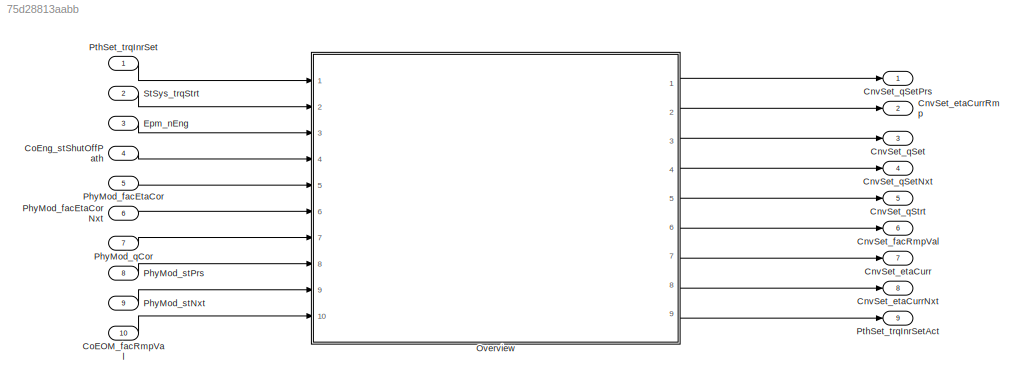
MODEL slx_75d28813aabb
KIND model
CONFIG AbsTol = auto
CONFIG EnableMultiTasking = off
CONFIG FixedStep = auto
CONFIG MaxStep = auto
CONFIG MinStep = auto
CONFIG RelTol = 1e-3
CONFIG SampleTimeConstraint = Unconstrained
CONFIG Solver = VariableStepAuto
CONFIG SolverName = VariableStepAuto
CONFIG StartTime = 0.0
CONFIG StopTime = 10.0
BLOCK [Outport] CnvSet_etaCurr
  IconDisplay = Port number
  Port = 7
BLOCK [Outport] CnvSet_etaCurrNxt
  IconDisplay = Port number
  Port = 8
BLOCK [Outport] CnvSet_etaCurrRmp
  IconDisplay = Port number
  Port = 2
BLOCK [Outport] CnvSet_facRmpVal
  IconDisplay = Port number
  Port = 6
BLOCK [Outport] CnvSet_qSet
  IconDisplay = Port number
  Port = 3
BLOCK [Outport] CnvSet_qSetNxt
  IconDisplay = Port number
  Port = 4
BLOCK [Outport] CnvSet_qSetPrs
  IconDisplay = Port number
BLOCK [Outport] CnvSet_qStrt
  IconDisplay = Port number
  Port = 5
BLOCK [Inport] CoEOM_facRmpVal
  IconDisplay = Port number
  Port = 10
BLOCK [Inport] CoEng_stShutOffPath
  IconDisplay = Port number
  Port = 4
BLOCK [Inport] Epm_nEng
  IconDisplay = Port number
  Port = 3
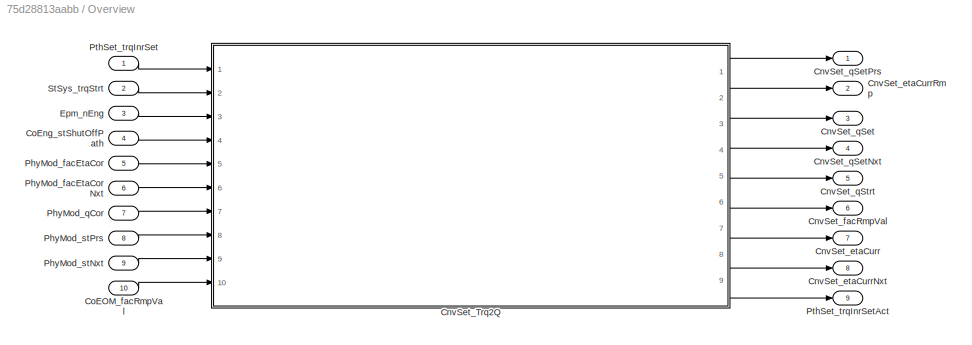
BLOCK [SubSystem] Overview
  Ports = [10, 9]
  RequestExecContextInheritance = off
BLOCK [ModelReference] Overview/CnvSet_Trq2Q
  ModelNameDialog = CnvSet_Trq2Q
  ModelReferenceVersion = 1.62
  Ports = [10, 9]
BLOCK [Outport] Overview/CnvSet_etaCurr
  IconDisplay = Port number
  Port = 7
BLOCK [Outport] Overview/CnvSet_etaCurrNxt
  IconDisplay = Port number
  Port = 8
BLOCK [Outport] Overview/CnvSet_etaCurrRmp
  IconDisplay = Port number
  Port = 2
BLOCK [Outport] Overview/CnvSet_facRmpVal
  IconDisplay = Port number
  Port = 6
BLOCK [Outport] Overview/CnvSet_qSet
  IconDisplay = Port number
  Port = 3
BLOCK [Outport] Overview/CnvSet_qSetNxt
  IconDisplay = Port number
  Port = 4
BLOCK [Outport] Overview/CnvSet_qSetPrs
  IconDisplay = Port number
BLOCK [Outport] Overview/CnvSet_qStrt
  IconDisplay = Port number
  Port = 5
BLOCK [Inport] Overview/CoEOM_facRmpVal
  IconDisplay = Port number
  Port = 10
BLOCK [Inport] Overview/CoEng_stShutOffPath
  IconDisplay = Port number
  Port = 4
BLOCK [Inport] Overview/Epm_nEng
  IconDisplay = Port number
  Port = 3
BLOCK [Inport] Overview/PhyMod_facEtaCor
  IconDisplay = Port number
  Port = 5
BLOCK [Inport] Overview/PhyMod_facEtaCorNxt
  IconDisplay = Port number
  Port = 6
BLOCK [Inport] Overview/PhyMod_qCor
  IconDisplay = Port number
  Port = 7
BLOCK [Inport] Overview/PhyMod_stNxt
  IconDisplay = Port number
  Port = 9
BLOCK [Inport] Overview/PhyMod_stPrs
  IconDisplay = Port number
  Port = 8
BLOCK [Inport] Overview/PthSet_trqInrSet
  IconDisplay = Port number
BLOCK [Outport] Overview/PthSet_trqInrSetAct
  IconDisplay = Port number
  Port = 9
BLOCK [Inport] Overview/StSys_trqStrt
  IconDisplay = Port number
  Port = 2
BLOCK [Inport] PhyMod_facEtaCor
  IconDisplay = Port number
  Port = 5
BLOCK [Inport] PhyMod_facEtaCorNxt
  IconDisplay = Port number
  Port = 6
BLOCK [Inport] PhyMod_qCor
  IconDisplay = Port number
  Port = 7
BLOCK [Inport] PhyMod_stNxt
  IconDisplay = Port number
  Port = 9
BLOCK [Inport] PhyMod_stPrs
  IconDisplay = Port number
  Port = 8
BLOCK [Inport] PthSet_trqInrSet
  IconDisplay = Port number
BLOCK [Outport] PthSet_trqInrSetAct
  IconDisplay = Port number
  Port = 9
BLOCK [Inport] StSys_trqStrt
  IconDisplay = Port number
  Port = 2
LINE CoEOM_facRmpVal:1 -> Overview:10
LINE CoEng_stShutOffPath:1 -> Overview:4
LINE Epm_nEng:1 -> Overview:3
LINE Overview/CnvSet_Trq2Q:1 -> Overview/CnvSet_qSetPrs:1
LINE Overview/CnvSet_Trq2Q:2 -> Overview/CnvSet_etaCurrRmp:1
LINE Overview/CnvSet_Trq2Q:3 -> Overview/CnvSet_qSet:1
LINE Overview/CnvSet_Trq2Q:4 -> Overview/CnvSet_qSetNxt:1
LINE Overview/CnvSet_Trq2Q:5 -> Overview/CnvSet_qStrt:1
LINE Overview/CnvSet_Trq2Q:6 -> Overview/CnvSet_facRmpVal:1
LINE Overview/CnvSet_Trq2Q:7 -> Overview/CnvSet_etaCurr:1
LINE Overview/CnvSet_Trq2Q:8 -> Overview/CnvSet_etaCurrNxt:1
LINE Overview/CnvSet_Trq2Q:9 -> Overview/PthSet_trqInrSetAct:1
LINE Overview/CoEOM_facRmpVal:1 -> Overview/CnvSet_Trq2Q:10
LINE Overview/CoEng_stShutOffPath:1 -> Overview/CnvSet_Trq2Q:4
LINE Overview/Epm_nEng:1 -> Overview/CnvSet_Trq2Q:3
LINE Overview/PhyMod_facEtaCor:1 -> Overview/CnvSet_Trq2Q:5
LINE Overview/PhyMod_facEtaCorNxt:1 -> Overview/CnvSet_Trq2Q:6
LINE Overview/PhyMod_qCor:1 -> Overview/CnvSet_Trq2Q:7
LINE Overview/PhyMod_stNxt:1 -> Overview/CnvSet_Trq2Q:9
LINE Overview/PhyMod_stPrs:1 -> Overview/CnvSet_Trq2Q:8
LINE Overview/PthSet_trqInrSet:1 -> Overview/CnvSet_Trq2Q:1
LINE Overview/StSys_trqStrt:1 -> Overview/CnvSet_Trq2Q:2
LINE Overview:1 -> CnvSet_qSetPrs:1
LINE Overview:2 -> CnvSet_etaCurrRmp:1
LINE Overview:3 -> CnvSet_qSet:1
LINE Overview:4 -> CnvSet_qSetNxt:1
LINE Overview:5 -> CnvSet_qStrt:1
LINE Overview:6 -> CnvSet_facRmpVal:1
LINE Overview:7 -> CnvSet_etaCurr:1
LINE Overview:8 -> CnvSet_etaCurrNxt:1
LINE Overview:9 -> PthSet_trqInrSetAct:1
LINE PhyMod_facEtaCor:1 -> Overview:5
LINE PhyMod_facEtaCorNxt:1 -> Overview:6
LINE PhyMod_qCor:1 -> Overview:7
LINE PhyMod_stNxt:1 -> Overview:9
LINE PhyMod_stPrs:1 -> Overview:8
LINE PthSet_trqInrSet:1 -> Overview:1
LINE StSys_trqStrt:1 -> Overview:2
